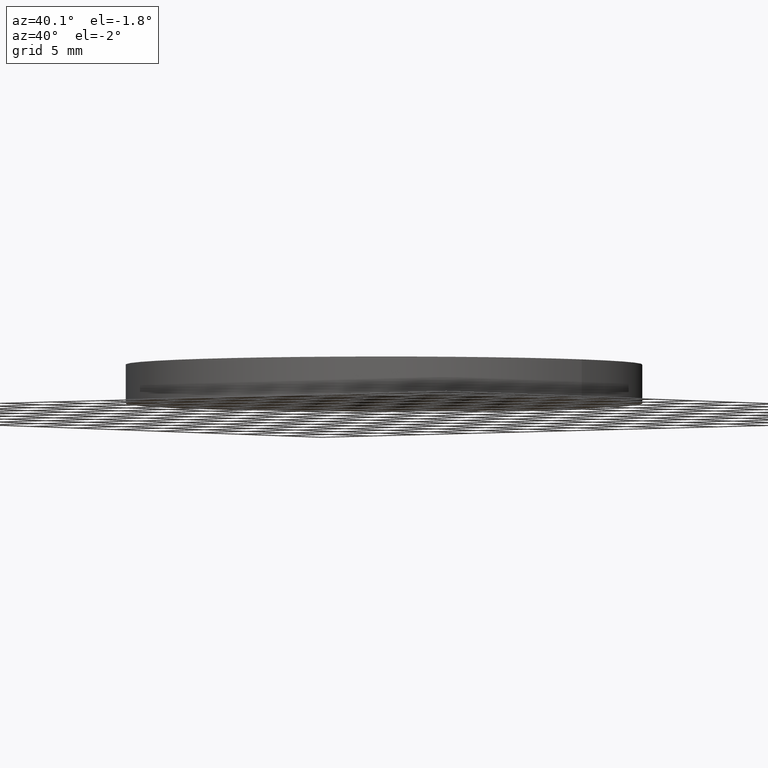
[diagram: clean part render]
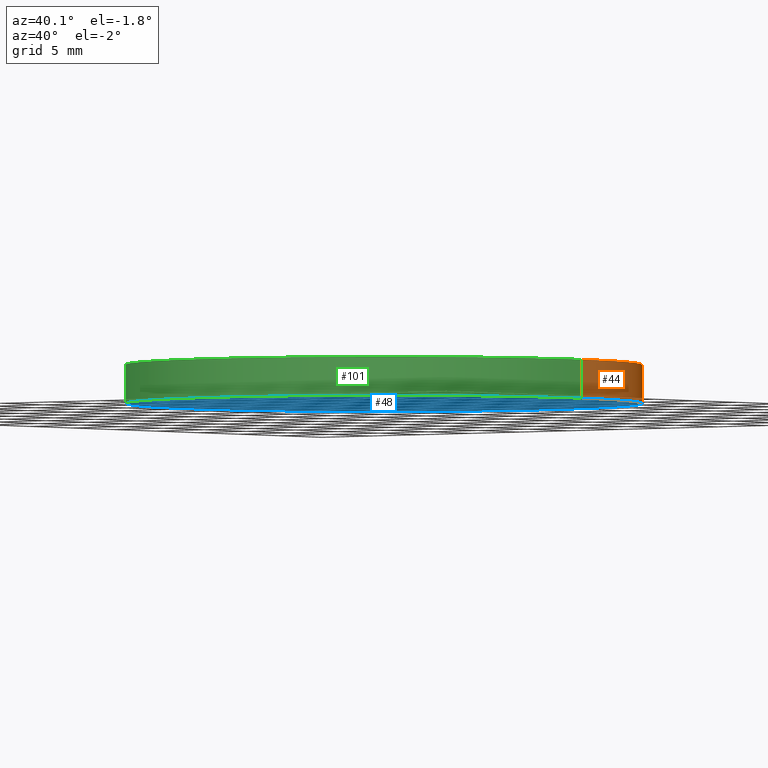
[diagram: same view with three faces highlighted in distinct colors, each labeled with its STEP entity id]
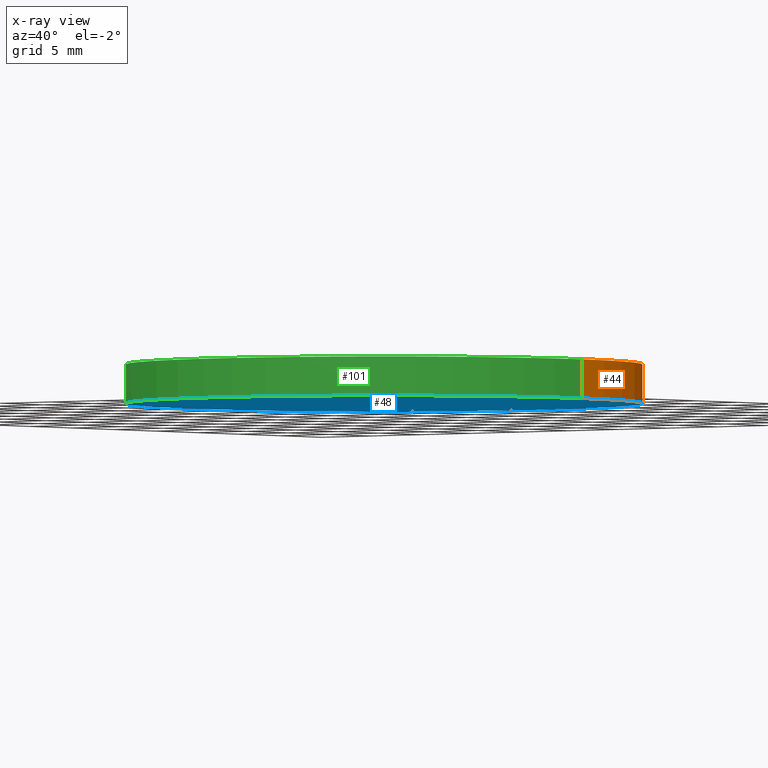
[diagram: x-ray of the same camera — body ghosted, the three highlighted faces saturated]
A machine part, auxiliary view with three faces highlighted in distinct colors.
The next image is the same camera in x-ray (body ghosted, the three faces saturated) — at least one of them is partly hidden behind the body in this view.
Their STEP definitions:

[orange] entity #44 — the highlighted cylindrical surface (partial cylindrical patch) has radius 20 mm, axis along (-0, -0, -1).
#4 = ORIENTED_EDGE ( 'NONE', *, *, #43, .F. ) ;
#7 = CYLINDRICAL_SURFACE ( 'NONE', #116, 20.00000000000000000 ) ;
#11 = LINE ( 'NONE', #28, #67 ) ;
#12 = VERTEX_POINT ( 'NONE', #89 ) ;
#13 = AXIS2_PLACEMENT_3D ( 'NONE', #63, #127, #54 ) ;
#16 = DIRECTION ( 'NONE',  ( -1.000000000000000000, 0.0000000000000000000, 0.0000000000000000000 ) ) ;
#18 = CARTESIAN_POINT ( 'NONE',  ( 20.00000000000000000, 2.449293598294706500E-015, 3.000000000000000000 ) ) ;
#24 = VERTEX_POINT ( 'NONE', #18 ) ;
#26 = AXIS2_PLACEMENT_3D ( 'NONE', #72, #51, #124 ) ;
#28 = CARTESIAN_POINT ( 'NONE',  ( 20.00000000000000000, 2.449293598294706500E-015, 3.000000000000000000 ) ) ;
#43 = EDGE_CURVE ( 'NONE', #24, #12, #53, .T. ) ;
#44 = ADVANCED_FACE ( 'NONE', ( #94 ), #7, .T. ) ;
#46 = VERTEX_POINT ( 'NONE', #99 ) ;
#47 = EDGE_LOOP ( 'NONE', ( #4, #85, #56, #59 ) ) ;
#51 = DIRECTION ( 'NONE',  ( 0.0000000000000000000, 0.0000000000000000000, 1.000000000000000000 ) ) ;
#53 = CIRCLE ( 'NONE', #26, 20.00000000000000000 ) ;
#54 = DIRECTION ( 'NONE',  ( 1.000000000000000000, 0.0000000000000000000, 0.0000000000000000000 ) ) ;
#56 = ORIENTED_EDGE ( 'NONE', *, *, #118, .T. ) ;
#58 = CARTESIAN_POINT ( 'NONE',  ( 0.0000000000000000000, 0.0000000000000000000, 3.000000000000000000 ) ) ;
#59 = ORIENTED_EDGE ( 'NONE', *, *, #136, .F. ) ;
#63 = CARTESIAN_POINT ( 'NONE',  ( 0.0000000000000000000, 0.0000000000000000000, 0.0000000000000000000 ) ) ;
#67 = VECTOR ( 'NONE', #104, 1000.000000000000000 ) ;
#71 = LINE ( 'NONE', #119, #80 ) ;
#72 = CARTESIAN_POINT ( 'NONE',  ( 0.0000000000000000000, 0.0000000000000000000, 3.000000000000000000 ) ) ;
#74 = DIRECTION ( 'NONE',  ( -0.0000000000000000000, -0.0000000000000000000, -1.000000000000000000 ) ) ;
#80 = VECTOR ( 'NONE', #114, 1000.000000000000000 ) ;
#85 = ORIENTED_EDGE ( 'NONE', *, *, #108, .T. ) ;
#89 = CARTESIAN_POINT ( 'NONE',  ( -20.00000000000000000, 0.0000000000000000000, 3.000000000000000000 ) ) ;
#93 = CIRCLE ( 'NONE', #13, 20.00000000000000000 ) ;
#94 = FACE_OUTER_BOUND ( 'NONE', #47, .T. ) ;
#99 = CARTESIAN_POINT ( 'NONE',  ( 20.00000000000000000, 2.449293598294706500E-015, 0.0000000000000000000 ) ) ;
#104 = DIRECTION ( 'NONE',  ( -0.0000000000000000000, -0.0000000000000000000, -1.000000000000000000 ) ) ;
#107 = VERTEX_POINT ( 'NONE', #123 ) ;
#108 = EDGE_CURVE ( 'NONE', #24, #46, #11, .T. ) ;
#114 = DIRECTION ( 'NONE',  ( -0.0000000000000000000, -0.0000000000000000000, -1.000000000000000000 ) ) ;
#116 = AXIS2_PLACEMENT_3D ( 'NONE', #58, #74, #16 ) ;
#118 = EDGE_CURVE ( 'NONE', #46, #107, #93, .T. ) ;
#119 = CARTESIAN_POINT ( 'NONE',  ( -20.00000000000000000, 0.0000000000000000000, 3.000000000000000000 ) ) ;
#123 = CARTESIAN_POINT ( 'NONE',  ( -20.00000000000000000, 0.0000000000000000000, 0.0000000000000000000 ) ) ;
#124 = DIRECTION ( 'NONE',  ( 1.000000000000000000, 0.0000000000000000000, 0.0000000000000000000 ) ) ;
#127 = DIRECTION ( 'NONE',  ( 0.0000000000000000000, 0.0000000000000000000, 1.000000000000000000 ) ) ;
#136 = EDGE_CURVE ( 'NONE', #12, #107, #71, .T. ) ;

[blue] entity #48 — the highlighted planar face has unit normal (0, 0, 1).
#9 = FACE_OUTER_BOUND ( 'NONE', #112, .T. ) ;
#13 = AXIS2_PLACEMENT_3D ( 'NONE', #63, #127, #54 ) ;
#20 = ORIENTED_EDGE ( 'NONE', *, *, #84, .F. ) ;
#27 = CARTESIAN_POINT ( 'NONE',  ( 0.0000000000000000000, 0.0000000000000000000, 0.0000000000000000000 ) ) ;
#35 = AXIS2_PLACEMENT_3D ( 'NONE', #27, #70, #39 ) ;
#39 = DIRECTION ( 'NONE',  ( 1.000000000000000000, 0.0000000000000000000, -0.0000000000000000000 ) ) ;
#46 = VERTEX_POINT ( 'NONE', #99 ) ;
#48 = ADVANCED_FACE ( 'NONE', ( #9 ), #96, .F. ) ;
#54 = DIRECTION ( 'NONE',  ( 1.000000000000000000, 0.0000000000000000000, 0.0000000000000000000 ) ) ;
#63 = CARTESIAN_POINT ( 'NONE',  ( 0.0000000000000000000, 0.0000000000000000000, 0.0000000000000000000 ) ) ;
#70 = DIRECTION ( 'NONE',  ( 0.0000000000000000000, 0.0000000000000000000, 1.000000000000000000 ) ) ;
#84 = EDGE_CURVE ( 'NONE', #107, #46, #98, .T. ) ;
#86 = CARTESIAN_POINT ( 'NONE',  ( 0.0000000000000000000, 0.0000000000000000000, 0.0000000000000000000 ) ) ;
#91 = ORIENTED_EDGE ( 'NONE', *, *, #118, .F. ) ;
#93 = CIRCLE ( 'NONE', #13, 20.00000000000000000 ) ;
#96 = PLANE ( 'NONE',  #35 ) ;
#98 = CIRCLE ( 'NONE', #111, 20.00000000000000000 ) ;
#99 = CARTESIAN_POINT ( 'NONE',  ( 20.00000000000000000, 2.449293598294706500E-015, 0.0000000000000000000 ) ) ;
#100 = DIRECTION ( 'NONE',  ( 1.000000000000000000, 0.0000000000000000000, 0.0000000000000000000 ) ) ;
#107 = VERTEX_POINT ( 'NONE', #123 ) ;
#111 = AXIS2_PLACEMENT_3D ( 'NONE', #86, #120, #100 ) ;
#112 = EDGE_LOOP ( 'NONE', ( #20, #91 ) ) ;
#118 = EDGE_CURVE ( 'NONE', #46, #107, #93, .T. ) ;
#120 = DIRECTION ( 'NONE',  ( 0.0000000000000000000, 0.0000000000000000000, 1.000000000000000000 ) ) ;
#123 = CARTESIAN_POINT ( 'NONE',  ( -20.00000000000000000, 0.0000000000000000000, 0.0000000000000000000 ) ) ;
#127 = DIRECTION ( 'NONE',  ( 0.0000000000000000000, 0.0000000000000000000, 1.000000000000000000 ) ) ;

[green] entity #101 — the highlighted cylindrical surface (partial cylindrical patch) has radius 20 mm, axis along (-0, -0, -1).
#11 = LINE ( 'NONE', #28, #67 ) ;
#12 = VERTEX_POINT ( 'NONE', #89 ) ;
#15 = FACE_OUTER_BOUND ( 'NONE', #76, .T. ) ;
#18 = CARTESIAN_POINT ( 'NONE',  ( 20.00000000000000000, 2.449293598294706500E-015, 3.000000000000000000 ) ) ;
#23 = AXIS2_PLACEMENT_3D ( 'NONE', #49, #61, #41 ) ;
#24 = VERTEX_POINT ( 'NONE', #18 ) ;
#28 = CARTESIAN_POINT ( 'NONE',  ( 20.00000000000000000, 2.449293598294706500E-015, 3.000000000000000000 ) ) ;
#36 = AXIS2_PLACEMENT_3D ( 'NONE', #60, #125, #137 ) ;
#37 = EDGE_CURVE ( 'NONE', #12, #24, #82, .T. ) ;
#40 = ORIENTED_EDGE ( 'NONE', *, *, #136, .T. ) ;
#41 = DIRECTION ( 'NONE',  ( -1.000000000000000000, 0.0000000000000000000, 0.0000000000000000000 ) ) ;
#46 = VERTEX_POINT ( 'NONE', #99 ) ;
#49 = CARTESIAN_POINT ( 'NONE',  ( 0.0000000000000000000, 0.0000000000000000000, 3.000000000000000000 ) ) ;
#60 = CARTESIAN_POINT ( 'NONE',  ( 0.0000000000000000000, 0.0000000000000000000, 3.000000000000000000 ) ) ;
#61 = DIRECTION ( 'NONE',  ( -0.0000000000000000000, -0.0000000000000000000, -1.000000000000000000 ) ) ;
#64 = ORIENTED_EDGE ( 'NONE', *, *, #37, .F. ) ;
#67 = VECTOR ( 'NONE', #104, 1000.000000000000000 ) ;
#71 = LINE ( 'NONE', #119, #80 ) ;
#76 = EDGE_LOOP ( 'NONE', ( #133, #64, #40, #122 ) ) ;
#80 = VECTOR ( 'NONE', #114, 1000.000000000000000 ) ;
#82 = CIRCLE ( 'NONE', #36, 20.00000000000000000 ) ;
#84 = EDGE_CURVE ( 'NONE', #107, #46, #98, .T. ) ;
#86 = CARTESIAN_POINT ( 'NONE',  ( 0.0000000000000000000, 0.0000000000000000000, 0.0000000000000000000 ) ) ;
#89 = CARTESIAN_POINT ( 'NONE',  ( -20.00000000000000000, 0.0000000000000000000, 3.000000000000000000 ) ) ;
#95 = CYLINDRICAL_SURFACE ( 'NONE', #23, 20.00000000000000000 ) ;
#98 = CIRCLE ( 'NONE', #111, 20.00000000000000000 ) ;
#99 = CARTESIAN_POINT ( 'NONE',  ( 20.00000000000000000, 2.449293598294706500E-015, 0.0000000000000000000 ) ) ;
#100 = DIRECTION ( 'NONE',  ( 1.000000000000000000, 0.0000000000000000000, 0.0000000000000000000 ) ) ;
#101 = ADVANCED_FACE ( 'NONE', ( #15 ), #95, .T. ) ;
#104 = DIRECTION ( 'NONE',  ( -0.0000000000000000000, -0.0000000000000000000, -1.000000000000000000 ) ) ;
#107 = VERTEX_POINT ( 'NONE', #123 ) ;
#108 = EDGE_CURVE ( 'NONE', #24, #46, #11, .T. ) ;
#111 = AXIS2_PLACEMENT_3D ( 'NONE', #86, #120, #100 ) ;
#114 = DIRECTION ( 'NONE',  ( -0.0000000000000000000, -0.0000000000000000000, -1.000000000000000000 ) ) ;
#119 = CARTESIAN_POINT ( 'NONE',  ( -20.00000000000000000, 0.0000000000000000000, 3.000000000000000000 ) ) ;
#120 = DIRECTION ( 'NONE',  ( 0.0000000000000000000, 0.0000000000000000000, 1.000000000000000000 ) ) ;
#122 = ORIENTED_EDGE ( 'NONE', *, *, #84, .T. ) ;
#123 = CARTESIAN_POINT ( 'NONE',  ( -20.00000000000000000, 0.0000000000000000000, 0.0000000000000000000 ) ) ;
#125 = DIRECTION ( 'NONE',  ( 0.0000000000000000000, 0.0000000000000000000, 1.000000000000000000 ) ) ;
#133 = ORIENTED_EDGE ( 'NONE', *, *, #108, .F. ) ;
#136 = EDGE_CURVE ( 'NONE', #12, #107, #71, .T. ) ;
#137 = DIRECTION ( 'NONE',  ( 1.000000000000000000, 0.0000000000000000000, 0.0000000000000000000 ) ) ;